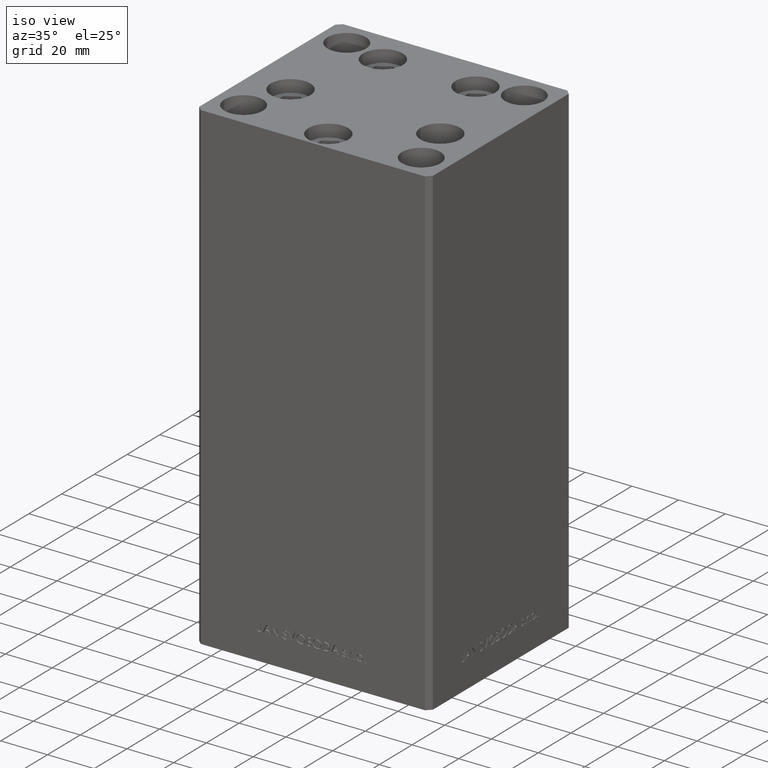
[diagram: clean part render]
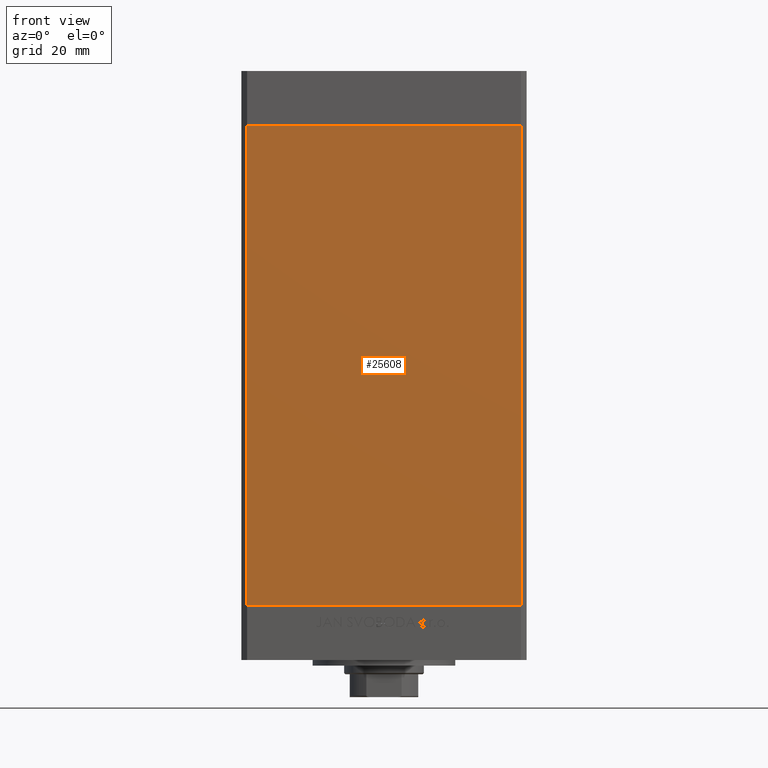
[diagram: tour spotlight — one face highlighted and labeled with its STEP entity id]
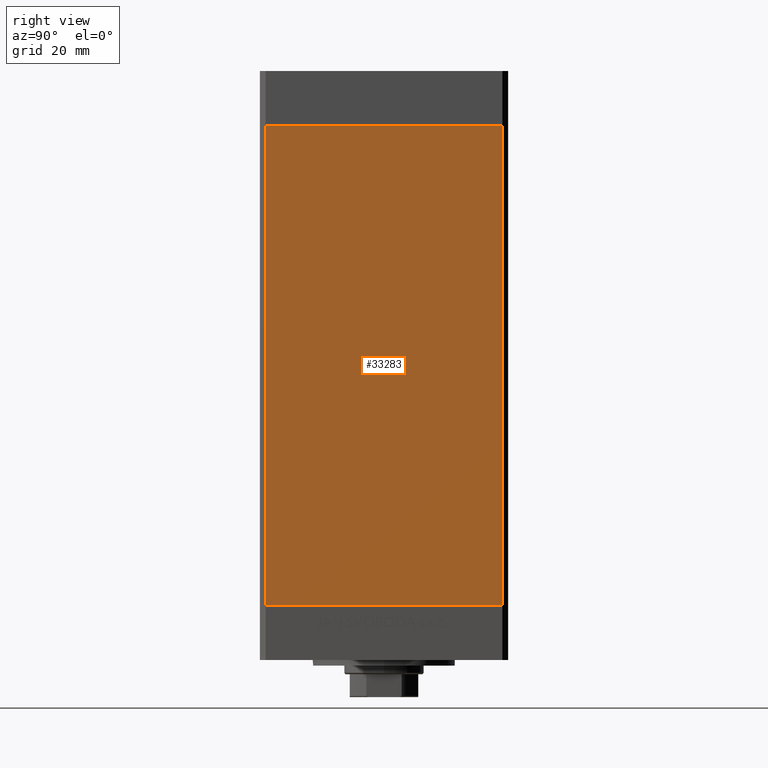
[diagram: tour spotlight — one face highlighted and labeled with its STEP entity id]
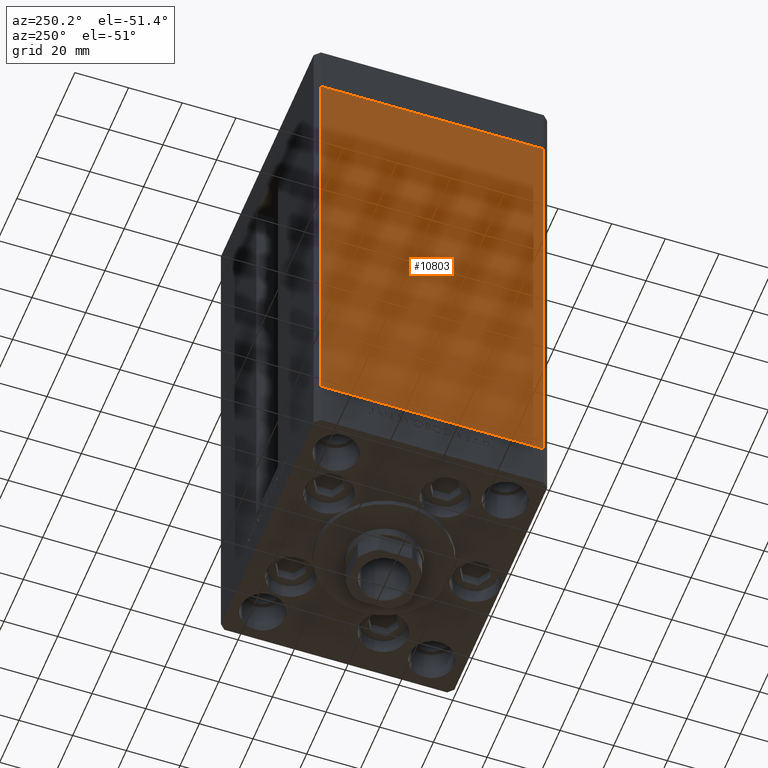
[diagram: tour spotlight — one face highlighted and labeled with its STEP entity id]
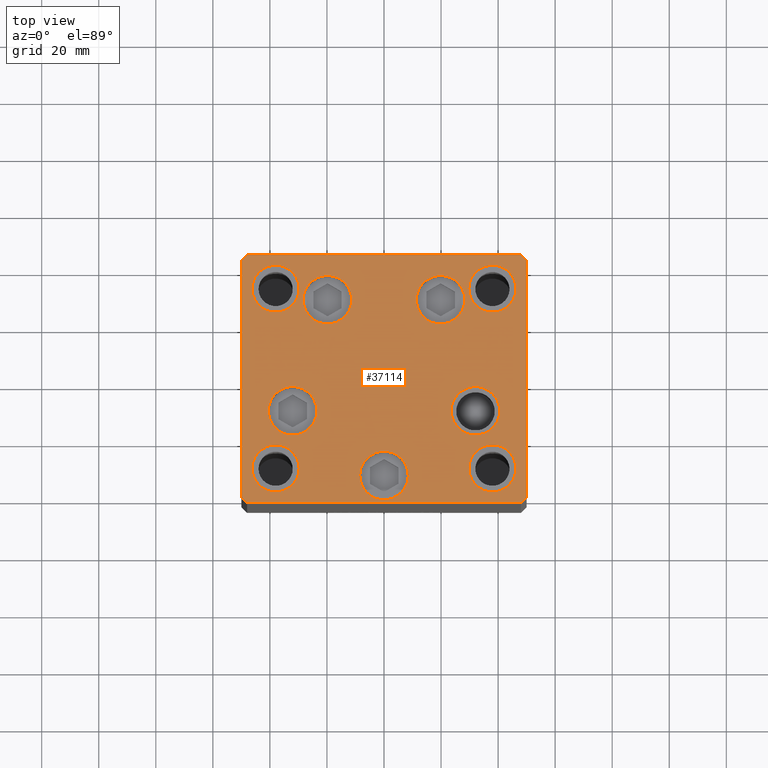
[diagram: tour spotlight — one face highlighted and labeled with its STEP entity id]
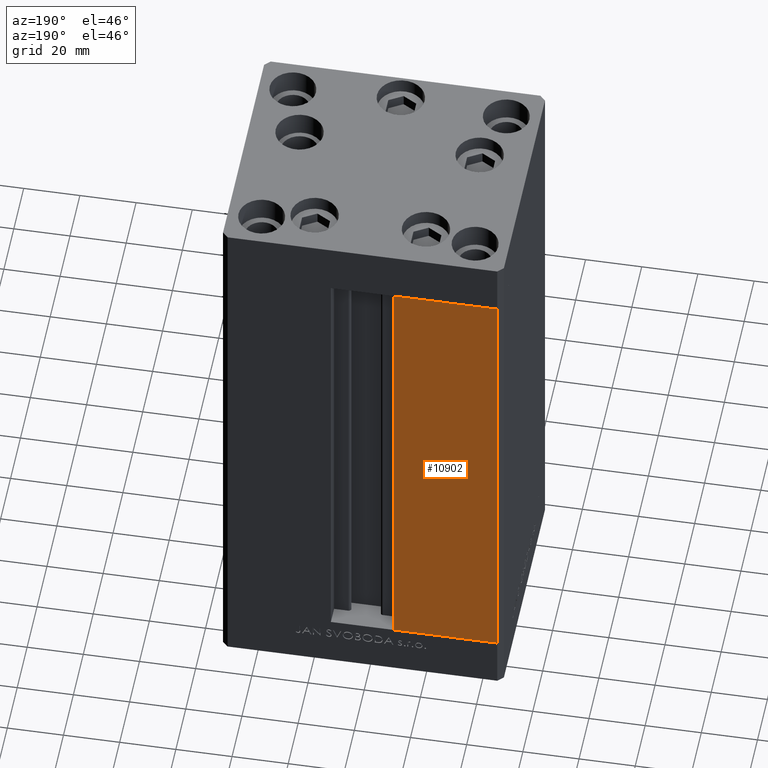
[diagram: tour spotlight — one face highlighted and labeled with its STEP entity id]
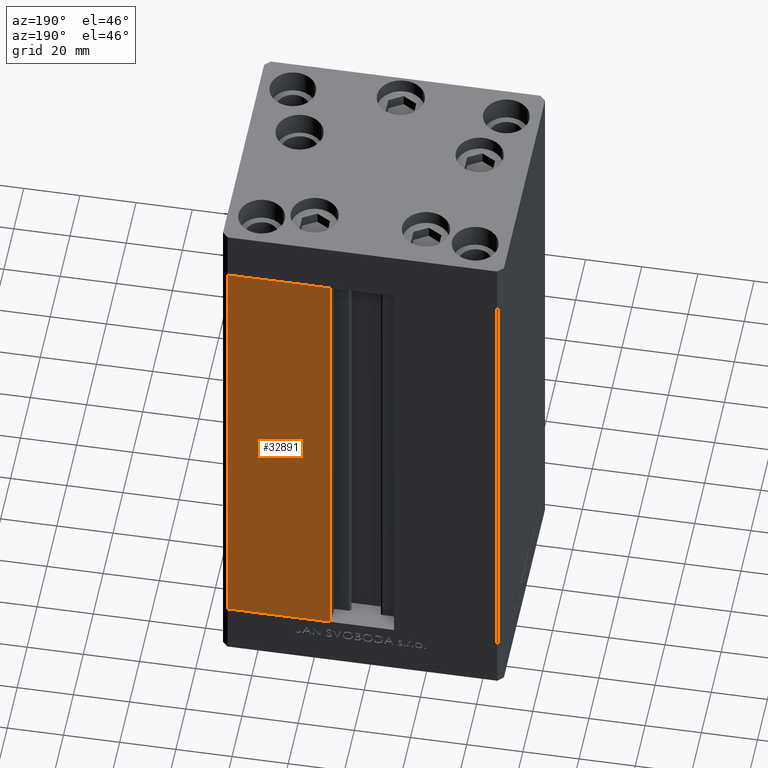
[diagram: tour spotlight — one face highlighted and labeled with its STEP entity id]
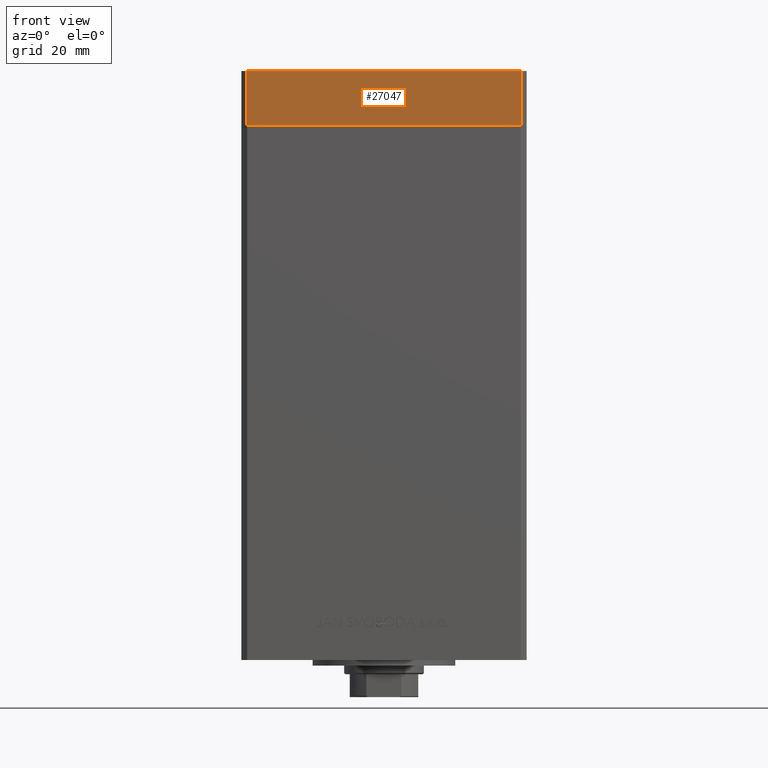
[diagram: tour spotlight — one face highlighted and labeled with its STEP entity id]
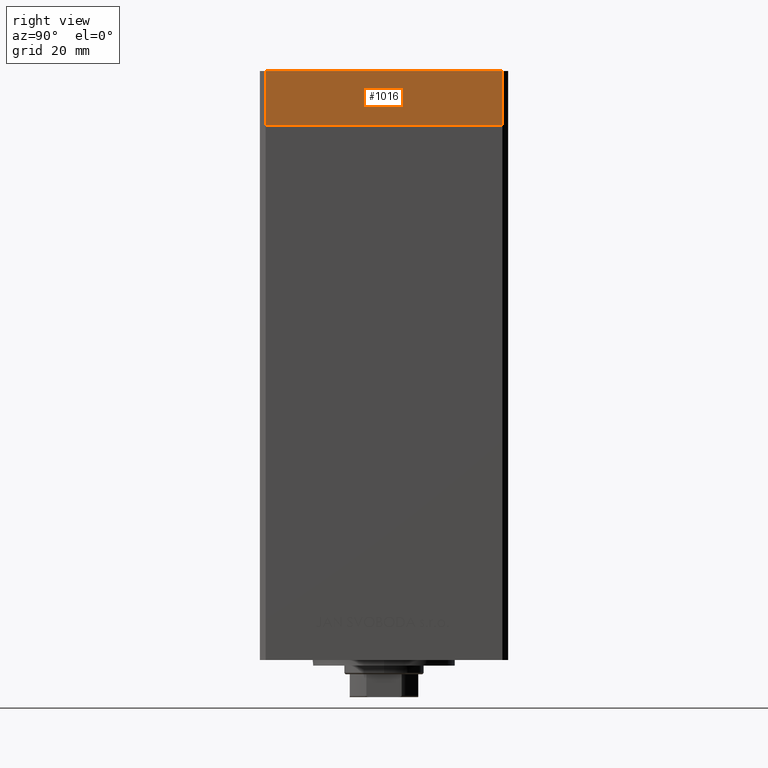
[diagram: tour spotlight — one face highlighted and labeled with its STEP entity id]
A machine part: a face-by-face anatomy tour. The part has 1164 B-rep faces; the first image is the clean iso view, then the 8 largest visible faces are spotlighted one at a time (largest first), each with its STEP entity span.

Face 1 — front view, entity #25608. In plain terms, the highlighted planar face has unit normal (0, 1, 0).
Definition (entity closure, byte-faithful):
#4247 = CARTESIAN_POINT ( 'NONE',  ( -47.99999999999998579, -43.50000000000000000, 168.5000000000000000 ) ) ;
#4658 = CARTESIAN_POINT ( 'NONE',  ( -47.99999999999998579, -43.50000000000000000, 168.5000000000000000 ) ) ;
#5004 = VERTEX_POINT ( 'NONE', #19539 ) ;
#5904 = EDGE_CURVE ( 'NONE', #8054, #5004, #32231, .T. ) ;
#6878 = VECTOR ( 'NONE', #22389, 1000.000000000000000 ) ;
#7977 = LINE ( 'NONE', #4247, #35651 ) ;
#8054 = VERTEX_POINT ( 'NONE', #27189 ) ;
#8873 = DIRECTION ( 'NONE',  ( 1.000000000000000000, 0.000000000000000000, 0.000000000000000000 ) ) ;
#9319 = DIRECTION ( 'NONE',  ( 1.000000000000000000, 0.000000000000000000, 0.000000000000000000 ) ) ;
#9434 = EDGE_CURVE ( 'NONE', #9710, #48022, #42722, .T. ) ;
#9710 = VERTEX_POINT ( 'NONE', #13041 ) ;
#10290 = EDGE_CURVE ( 'NONE', #48022, #5004, #45516, .T. ) ;
#10690 = VECTOR ( 'NONE', #9319, 1000.000000000000000 ) ;
#10791 = VECTOR ( 'NONE', #8873, 1000.000000000000000 ) ;
#12362 = ORIENTED_EDGE ( 'NONE', *, *, #5904, .T. ) ;
#13041 = CARTESIAN_POINT ( 'NONE',  ( -47.99999999999998579, -43.50000000000000000, 168.5000000000000000 ) ) ;
#14065 = DIRECTION ( 'NONE',  ( 0.000000000000000000, -0.000000000000000000, 1.000000000000000000 ) ) ;
#14557 = PLANE ( 'NONE',  #40593 ) ;
#16809 = EDGE_CURVE ( 'NONE', #9710, #8054, #7977, .T. ) ;
#18048 = CARTESIAN_POINT ( 'NONE',  ( -47.99999999999998579, -43.50000000000000000, 168.5000000000000000 ) ) ;
#19539 = CARTESIAN_POINT ( 'NONE',  ( 47.99999999999998579, -43.50000000000000000, 0.000000000000000000 ) ) ;
#20352 = CARTESIAN_POINT ( 'NONE',  ( 47.99999999999998579, -43.50000000000000000, 168.5000000000000000 ) ) ;
#20778 = CARTESIAN_POINT ( 'NONE',  ( -47.99999999999998579, -43.50000000000000000, 0.000000000000000000 ) ) ;
#20834 = DIRECTION ( 'NONE',  ( -0.000000000000000000, -0.000000000000000000, -1.000000000000000000 ) ) ;
#21253 = ORIENTED_EDGE ( 'NONE', *, *, #9434, .F. ) ;
#22389 = DIRECTION ( 'NONE',  ( -0.000000000000000000, -0.000000000000000000, -1.000000000000000000 ) ) ;
#25608 = ADVANCED_FACE ( 'NONE', ( #26259 ), #14557, .F. ) ;
#26259 = FACE_OUTER_BOUND ( 'NONE', #36118, .T. ) ;
#27189 = CARTESIAN_POINT ( 'NONE',  ( -47.99999999999998579, -43.50000000000000000, 0.000000000000000000 ) ) ;
#31094 = ORIENTED_EDGE ( 'NONE', *, *, #10290, .F. ) ;
#32231 = LINE ( 'NONE', #20778, #10690 ) ;
#33228 = DIRECTION ( 'NONE',  ( 0.000000000000000000, 1.000000000000000000, 0.000000000000000000 ) ) ;
#33820 = CARTESIAN_POINT ( 'NONE',  ( 47.99999999999998579, -43.50000000000000000, 168.5000000000000000 ) ) ;
#35651 = VECTOR ( 'NONE', #20834, 1000.000000000000000 ) ;
#36118 = EDGE_LOOP ( 'NONE', ( #12362, #31094, #21253, #43977 ) ) ;
#40593 = AXIS2_PLACEMENT_3D ( 'NONE', #18048, #33228, #14065 ) ;
#42722 = LINE ( 'NONE', #4658, #10791 ) ;
#43977 = ORIENTED_EDGE ( 'NONE', *, *, #16809, .T. ) ;
#45516 = LINE ( 'NONE', #33820, #6878 ) ;
#48022 = VERTEX_POINT ( 'NONE', #20352 ) ;

Face 2 — right view, entity #33283. In plain terms, the highlighted planar face has unit normal (1, -0, 0).
Definition (entity closure, byte-faithful):
#154 = DIRECTION ( 'NONE',  ( -0.000000000000000000, -0.000000000000000000, -1.000000000000000000 ) ) ;
#2975 = VECTOR ( 'NONE', #13537, 1000.000000000000000 ) ;
#3137 = LINE ( 'NONE', #15318, #38033 ) ;
#3876 = EDGE_CURVE ( 'NONE', #42828, #42943, #27144, .T. ) ;
#5575 = CARTESIAN_POINT ( 'NONE',  ( 49.99999999999998579, -41.49999999999999289, 168.5000000000000000 ) ) ;
#7964 = DIRECTION ( 'NONE',  ( -3.344045254895050973E-16, -1.000000000000000000, 0.000000000000000000 ) ) ;
#10497 = CARTESIAN_POINT ( 'NONE',  ( 50.00000000000001421, 41.49999999999999289, 168.5000000000000000 ) ) ;
#13537 = DIRECTION ( 'NONE',  ( -0.000000000000000000, -0.000000000000000000, -1.000000000000000000 ) ) ;
#14985 = EDGE_LOOP ( 'NONE', ( #30369, #34761, #34549, #43398 ) ) ;
#15318 = CARTESIAN_POINT ( 'NONE',  ( 50.00000000000001421, 41.49999999999999289, 168.5000000000000000 ) ) ;
#15332 = CARTESIAN_POINT ( 'NONE',  ( 49.99999999999998579, -41.49999999999999289, 168.5000000000000000 ) ) ;
#16132 = EDGE_CURVE ( 'NONE', #42828, #24350, #3137, .T. ) ;
#16971 = VECTOR ( 'NONE', #7964, 1000.000000000000000 ) ;
#17219 = AXIS2_PLACEMENT_3D ( 'NONE', #33948, #19016, #26741 ) ;
#18412 = CARTESIAN_POINT ( 'NONE',  ( 49.99999999999998579, -41.49999999999999289, 0.000000000000000000 ) ) ;
#19016 = DIRECTION ( 'NONE',  ( 1.000000000000000000, -3.344045254895050973E-16, 0.000000000000000000 ) ) ;
#24350 = VERTEX_POINT ( 'NONE', #38712 ) ;
#26120 = VECTOR ( 'NONE', #27964, 1000.000000000000000 ) ;
#26741 = DIRECTION ( 'NONE',  ( 3.344045254895050973E-16, 1.000000000000000000, 0.000000000000000000 ) ) ;
#26896 = CARTESIAN_POINT ( 'NONE',  ( 50.00000000000001421, 41.49999999999999289, 168.5000000000000000 ) ) ;
#27144 = LINE ( 'NONE', #26896, #16971 ) ;
#27964 = DIRECTION ( 'NONE',  ( -3.344045254895050973E-16, -1.000000000000000000, 0.000000000000000000 ) ) ;
#30369 = ORIENTED_EDGE ( 'NONE', *, *, #39309, .F. ) ;
#33283 = ADVANCED_FACE ( 'NONE', ( #45885 ), #38179, .T. ) ;
#33948 = CARTESIAN_POINT ( 'NONE',  ( 50.00000000000001421, 41.49999999999999289, 168.5000000000000000 ) ) ;
#34549 = ORIENTED_EDGE ( 'NONE', *, *, #3876, .T. ) ;
#34761 = ORIENTED_EDGE ( 'NONE', *, *, #16132, .F. ) ;
#35937 = LINE ( 'NONE', #5575, #2975 ) ;
#36402 = LINE ( 'NONE', #39155, #26120 ) ;
#36469 = EDGE_CURVE ( 'NONE', #42943, #37594, #35937, .T. ) ;
#37594 = VERTEX_POINT ( 'NONE', #18412 ) ;
#38033 = VECTOR ( 'NONE', #154, 1000.000000000000000 ) ;
#38179 = PLANE ( 'NONE',  #17219 ) ;
#38712 = CARTESIAN_POINT ( 'NONE',  ( 50.00000000000001421, 41.49999999999999289, 0.000000000000000000 ) ) ;
#39155 = CARTESIAN_POINT ( 'NONE',  ( 50.00000000000001421, 41.49999999999999289, 0.000000000000000000 ) ) ;
#39309 = EDGE_CURVE ( 'NONE', #24350, #37594, #36402, .T. ) ;
#42828 = VERTEX_POINT ( 'NONE', #10497 ) ;
#42943 = VERTEX_POINT ( 'NONE', #15332 ) ;
#43398 = ORIENTED_EDGE ( 'NONE', *, *, #36469, .T. ) ;
#45885 = FACE_OUTER_BOUND ( 'NONE', #14985, .T. ) ;

Face 3 — auxiliary view, entity #10803. In plain terms, the highlighted planar face has unit normal (1, 0, 0).
Definition (entity closure, byte-faithful):
#3821 = LINE ( 'NONE', #11540, #32649 ) ;
#7407 = EDGE_CURVE ( 'NONE', #24306, #12091, #24886, .T. ) ;
#8111 = CARTESIAN_POINT ( 'NONE',  ( -50.00000000000001421, 41.49999999999999289, 0.000000000000000000 ) ) ;
#9023 = DIRECTION ( 'NONE',  ( 1.000000000000000000, 3.344045254895050973E-16, -0.000000000000000000 ) ) ;
#10133 = VERTEX_POINT ( 'NONE', #20701 ) ;
#10803 = ADVANCED_FACE ( 'NONE', ( #27958 ), #30724, .F. ) ;
#11540 = CARTESIAN_POINT ( 'NONE',  ( -49.99999999999998579, -41.49999999999999289, 168.5000000000000000 ) ) ;
#12091 = VERTEX_POINT ( 'NONE', #37623 ) ;
#13608 = EDGE_CURVE ( 'NONE', #31631, #24306, #20306, .T. ) ;
#14109 = LINE ( 'NONE', #47947, #25388 ) ;
#16502 = DIRECTION ( 'NONE',  ( -3.344045254895050973E-16, 1.000000000000000000, 0.000000000000000000 ) ) ;
#16854 = EDGE_CURVE ( 'NONE', #31631, #10133, #14109, .T. ) ;
#18121 = VECTOR ( 'NONE', #20063, 1000.000000000000000 ) ;
#18600 = EDGE_LOOP ( 'NONE', ( #44710, #19855, #48437, #23153 ) ) ;
#19006 = DIRECTION ( 'NONE',  ( -0.000000000000000000, -0.000000000000000000, -1.000000000000000000 ) ) ;
#19492 = VECTOR ( 'NONE', #39299, 1000.000000000000000 ) ;
#19855 = ORIENTED_EDGE ( 'NONE', *, *, #47556, .F. ) ;
#20063 = DIRECTION ( 'NONE',  ( -0.000000000000000000, -0.000000000000000000, -1.000000000000000000 ) ) ;
#20306 = LINE ( 'NONE', #31771, #18121 ) ;
#20701 = CARTESIAN_POINT ( 'NONE',  ( -49.99999999999998579, -41.49999999999999289, 168.5000000000000000 ) ) ;
#23153 = ORIENTED_EDGE ( 'NONE', *, *, #13608, .T. ) ;
#24306 = VERTEX_POINT ( 'NONE', #8111 ) ;
#24886 = LINE ( 'NONE', #31609, #19492 ) ;
#25388 = VECTOR ( 'NONE', #43974, 1000.000000000000000 ) ;
#27958 = FACE_OUTER_BOUND ( 'NONE', #18600, .T. ) ;
#30724 = PLANE ( 'NONE',  #38672 ) ;
#31609 = CARTESIAN_POINT ( 'NONE',  ( -50.00000000000001421, 41.49999999999999289, 0.000000000000000000 ) ) ;
#31631 = VERTEX_POINT ( 'NONE', #36298 ) ;
#31771 = CARTESIAN_POINT ( 'NONE',  ( -50.00000000000001421, 41.49999999999999289, 168.5000000000000000 ) ) ;
#32649 = VECTOR ( 'NONE', #19006, 1000.000000000000000 ) ;
#36298 = CARTESIAN_POINT ( 'NONE',  ( -50.00000000000001421, 41.49999999999999289, 168.5000000000000000 ) ) ;
#37623 = CARTESIAN_POINT ( 'NONE',  ( -49.99999999999998579, -41.49999999999999289, 0.000000000000000000 ) ) ;
#38672 = AXIS2_PLACEMENT_3D ( 'NONE', #46137, #9023, #16502 ) ;
#39299 = DIRECTION ( 'NONE',  ( 3.344045254895050973E-16, -1.000000000000000000, 0.000000000000000000 ) ) ;
#43974 = DIRECTION ( 'NONE',  ( 3.344045254895050973E-16, -1.000000000000000000, 0.000000000000000000 ) ) ;
#44710 = ORIENTED_EDGE ( 'NONE', *, *, #7407, .T. ) ;
#46137 = CARTESIAN_POINT ( 'NONE',  ( -50.00000000000001421, 41.49999999999999289, 168.5000000000000000 ) ) ;
#47556 = EDGE_CURVE ( 'NONE', #10133, #12091, #3821, .T. ) ;
#47947 = CARTESIAN_POINT ( 'NONE',  ( -50.00000000000001421, 41.49999999999999289, 168.5000000000000000 ) ) ;
#48437 = ORIENTED_EDGE ( 'NONE', *, *, #16854, .F. ) ;

Face 4 — top view, entity #37114. In plain terms, the highlighted planar face has unit normal (0, 0, 1).
Definition (entity closure, byte-faithful):
#218 = FACE_BOUND ( 'NONE', #3412, .T. ) ;
#384 = DIRECTION ( 'NONE',  ( -0.7071067811865474617, 0.7071067811865474617, 0.000000000000000000 ) ) ;
#458 = DIRECTION ( 'NONE',  ( -0.000000000000000000, 0.000000000000000000, 1.000000000000000000 ) ) ;
#604 = AXIS2_PLACEMENT_3D ( 'NONE', #18049, #22029, #18297 ) ;
#867 = VERTEX_POINT ( 'NONE', #41005 ) ;
#1076 = ORIENTED_EDGE ( 'NONE', *, *, #14120, .T. ) ;
#1573 = DIRECTION ( 'NONE',  ( 1.000000000000000000, 0.000000000000000000, 0.000000000000000000 ) ) ;
#1981 = VECTOR ( 'NONE', #384, 1000.000000000000114 ) ;
#2078 = EDGE_CURVE ( 'NONE', #42292, #20664, #13863, .T. ) ;
#2242 = EDGE_CURVE ( 'NONE', #16108, #16893, #46684, .T. ) ;
#2313 = CARTESIAN_POINT ( 'NONE',  ( -32.05550741379015278, -11.33333333333333925, 0.000000000000000000 ) ) ;
#2539 = EDGE_CURVE ( 'NONE', #20664, #42292, #17077, .T. ) ;
#3047 = CIRCLE ( 'NONE', #9390, 8.500000000000000000 ) ;
#3374 = EDGE_CURVE ( 'NONE', #36905, #8572, #22781, .T. ) ;
#3412 = EDGE_LOOP ( 'NONE', ( #48491, #40987 ) ) ;
#3599 = DIRECTION ( 'NONE',  ( 0.000000000000000000, 0.000000000000000000, 1.000000000000000000 ) ) ;
#3812 = CARTESIAN_POINT ( 'NONE',  ( -50.00000000000000000, -41.50000000000000000, 0.000000000000000000 ) ) ;
#3975 = ORIENTED_EDGE ( 'NONE', *, *, #32098, .F. ) ;
#4017 = CARTESIAN_POINT ( 'NONE',  ( -29.75000000000000000, 31.50000000000000000, 0.000000000000000000 ) ) ;
#4266 = CARTESIAN_POINT ( 'NONE',  ( -50.00000000000000711, 41.49999999999995026, 0.000000000000000000 ) ) ;
#4641 = CIRCLE ( 'NONE', #15015, 8.500000000000000000 ) ;
#4906 = FACE_BOUND ( 'NONE', #22301, .T. ) ;
#5006 = DIRECTION ( 'NONE',  ( -0.7071067811865463515, -0.7071067811865487940, 0.000000000000000000 ) ) ;
#5546 = DIRECTION ( 'NONE',  ( 0.000000000000000000, 0.000000000000000000, 1.000000000000000000 ) ) ;
#5678 = ORIENTED_EDGE ( 'NONE', *, *, #48980, .T. ) ;
#5686 = VERTEX_POINT ( 'NONE', #47201 ) ;
#5918 = DIRECTION ( 'NONE',  ( 0.000000000000000000, -0.000000000000000000, -1.000000000000000000 ) ) ;
#5932 = CARTESIAN_POINT ( 'NONE',  ( 23.55550741379015633, -11.33333333333333037, 0.000000000000000000 ) ) ;
#6340 = CARTESIAN_POINT ( 'NONE',  ( 40.55550741379014568, -11.33333333333332860, 0.000000000000000000 ) ) ;
#6728 = VERTEX_POINT ( 'NONE', #10205 ) ;
#7389 = DIRECTION ( 'NONE',  ( 1.000000000000000000, 0.000000000000000000, 0.000000000000000000 ) ) ;
#7423 = DIRECTION ( 'NONE',  ( 0.000000000000000000, -0.000000000000000000, -1.000000000000000000 ) ) ;
#7650 = FACE_OUTER_BOUND ( 'NONE', #36186, .T. ) ;
#7826 = VECTOR ( 'NONE', #33930, 1000.000000000000114 ) ;
#8372 = AXIS2_PLACEMENT_3D ( 'NONE', #19741, #34925, #29977 ) ;
#8418 = EDGE_CURVE ( 'NONE', #16893, #36905, #23397, .T. ) ;
#8572 = VERTEX_POINT ( 'NONE', #25854 ) ;
#8791 = DIRECTION ( 'NONE',  ( 1.000000000000000000, 0.000000000000000000, 0.000000000000000000 ) ) ;
#8819 = AXIS2_PLACEMENT_3D ( 'NONE', #10787, #11770, #19235 ) ;
#9100 = VERTEX_POINT ( 'NONE', #39531 ) ;
#9101 = DIRECTION ( 'NONE',  ( 0.7071067811865463515, 0.7071067811865487940, 0.000000000000000000 ) ) ;
#9127 = ORIENTED_EDGE ( 'NONE', *, *, #8418, .T. ) ;
#9254 = CARTESIAN_POINT ( 'NONE',  ( -37.99999999999999289, -31.50000000000000000, 0.000000000000000000 ) ) ;
#9336 = DIRECTION ( 'NONE',  ( 1.000000000000000000, 0.000000000000000000, 0.000000000000000000 ) ) ;
#9390 = AXIS2_PLACEMENT_3D ( 'NONE', #48024, #11611, #30789 ) ;
#9463 = ORIENTED_EDGE ( 'NONE', *, *, #39633, .T. ) ;
#9695 = VERTEX_POINT ( 'NONE', #27991 ) ;
#9858 = CARTESIAN_POINT ( 'NONE',  ( 4.163799117101000559E-15, -34.00000000000000000, 0.000000000000000000 ) ) ;
#10139 = DIRECTION ( 'NONE',  ( 0.000000000000000000, -0.000000000000000000, -1.000000000000000000 ) ) ;
#10205 = CARTESIAN_POINT ( 'NONE',  ( 8.500000000000003553, -34.00000000000000000, 0.000000000000000000 ) ) ;
#10787 = CARTESIAN_POINT ( 'NONE',  ( 19.82068048781373193, 27.62500000000000000, 0.000000000000000000 ) ) ;
#11153 = CARTESIAN_POINT ( 'NONE',  ( 46.25000000000000000, 31.49999999999999289, 0.000000000000000000 ) ) ;
#11611 = DIRECTION ( 'NONE',  ( 0.000000000000000000, -0.000000000000000000, -1.000000000000000000 ) ) ;
#11770 = DIRECTION ( 'NONE',  ( 0.000000000000000000, -0.000000000000000000, -1.000000000000000000 ) ) ;
#11815 = CARTESIAN_POINT ( 'NONE',  ( -38.00000000000000000, 31.50000000000000000, 0.000000000000000000 ) ) ;
#12308 = ORIENTED_EDGE ( 'NONE', *, *, #17428, .T. ) ;
#12376 = FACE_BOUND ( 'NONE', #34972, .T. ) ;
#12731 = EDGE_LOOP ( 'NONE', ( #30402, #14488 ) ) ;
#12921 = EDGE_CURVE ( 'NONE', #6728, #29401, #22062, .T. ) ;
#13048 = LINE ( 'NONE', #17032, #44480 ) ;
#13112 = EDGE_CURVE ( 'NONE', #867, #45191, #39511, .T. ) ;
#13254 = VERTEX_POINT ( 'NONE', #22700 ) ;
#13383 = DIRECTION ( 'NONE',  ( 1.000000000000000000, 0.000000000000000000, 0.000000000000000000 ) ) ;
#13594 = VECTOR ( 'NONE', #39380, 1000.000000000000000 ) ;
#13645 = VERTEX_POINT ( 'NONE', #25042 ) ;
#13863 = CIRCLE ( 'NONE', #33711, 8.250000000000000000 ) ;
#14006 = VERTEX_POINT ( 'NONE', #48586 ) ;
#14120 = EDGE_CURVE ( 'NONE', #26075, #14006, #37956, .T. ) ;
#14340 = DIRECTION ( 'NONE',  ( 1.000000000000000000, 0.000000000000000000, 0.000000000000000000 ) ) ;
#14488 = ORIENTED_EDGE ( 'NONE', *, *, #39312, .T. ) ;
#14910 = ORIENTED_EDGE ( 'NONE', *, *, #24794, .T. ) ;
#14948 = AXIS2_PLACEMENT_3D ( 'NONE', #26593, #458, #42248 ) ;
#15015 = AXIS2_PLACEMENT_3D ( 'NONE', #2313, #17499, #1573 ) ;
#15543 = CARTESIAN_POINT ( 'NONE',  ( -47.99999999999999289, -43.50000000000001421, 0.000000000000000000 ) ) ;
#16108 = VERTEX_POINT ( 'NONE', #48668 ) ;
#16574 = CIRCLE ( 'NONE', #18949, 8.499999999999992895 ) ;
#16740 = DIRECTION ( 'NONE',  ( 1.000000000000000000, 0.000000000000000000, 0.000000000000000000 ) ) ;
#16893 = VERTEX_POINT ( 'NONE', #30519 ) ;
#16909 = EDGE_CURVE ( 'NONE', #8572, #20605, #31020, .T. ) ;
#17032 = CARTESIAN_POINT ( 'NONE',  ( -47.99999999999999289, -43.50000000000001421, 0.000000000000000000 ) ) ;
#17077 = CIRCLE ( 'NONE', #35336, 8.250000000000000000 ) ;
#17323 = CARTESIAN_POINT ( 'NONE',  ( -50.00000000000000000, -41.50000000000000000, 0.000000000000000000 ) ) ;
#17428 = EDGE_CURVE ( 'NONE', #34368, #13254, #37297, .T. ) ;
#17499 = DIRECTION ( 'NONE',  ( 0.000000000000000000, -0.000000000000000000, -1.000000000000000000 ) ) ;
#17967 = DIRECTION ( 'NONE',  ( 0.000000000000000000, -0.000000000000000000, -1.000000000000000000 ) ) ;
#18049 = CARTESIAN_POINT ( 'NONE',  ( 4.163799117101000559E-15, -34.00000000000000000, 0.000000000000000000 ) ) ;
#18055 = DIRECTION ( 'NONE',  ( 1.000000000000000000, 0.000000000000000000, 0.000000000000000000 ) ) ;
#18115 = AXIS2_PLACEMENT_3D ( 'NONE', #43593, #17967, #21710 ) ;
#18297 = DIRECTION ( 'NONE',  ( 1.000000000000000000, 0.000000000000000000, 0.000000000000000000 ) ) ;
#18715 = CIRCLE ( 'NONE', #8372, 8.250000000000000000 ) ;
#18750 = LINE ( 'NONE', #3812, #7826 ) ;
#18949 = AXIS2_PLACEMENT_3D ( 'NONE', #44230, #10139, #21596 ) ;
#19235 = DIRECTION ( 'NONE',  ( 1.000000000000000000, 0.000000000000000000, 0.000000000000000000 ) ) ;
#19359 = FACE_BOUND ( 'NONE', #40697, .T. ) ;
#19403 = DIRECTION ( 'NONE',  ( -1.003213576468515193E-15, 1.000000000000000000, 0.000000000000000000 ) ) ;
#19500 = EDGE_CURVE ( 'NONE', #31008, #35452, #18750, .T. ) ;
#19741 = CARTESIAN_POINT ( 'NONE',  ( 38.00000000000000000, 31.49999999999999289, 0.000000000000000000 ) ) ;
#20061 = EDGE_CURVE ( 'NONE', #30694, #34981, #16574, .T. ) ;
#20605 = VERTEX_POINT ( 'NONE', #42328 ) ;
#20652 = CIRCLE ( 'NONE', #28620, 8.500000000000000000 ) ;
#20664 = VERTEX_POINT ( 'NONE', #4017 ) ;
#20671 = VERTEX_POINT ( 'NONE', #45820 ) ;
#21122 = ORIENTED_EDGE ( 'NONE', *, *, #2242, .T. ) ;
#21596 = DIRECTION ( 'NONE',  ( 1.000000000000000000, 0.000000000000000000, 0.000000000000000000 ) ) ;
#21710 = DIRECTION ( 'NONE',  ( 1.000000000000000000, 0.000000000000000000, 0.000000000000000000 ) ) ;
#21713 = DIRECTION ( 'NONE',  ( 0.000000000000000000, 0.000000000000000000, 1.000000000000000000 ) ) ;
#21944 = ORIENTED_EDGE ( 'NONE', *, *, #13112, .F. ) ;
#22029 = DIRECTION ( 'NONE',  ( 0.000000000000000000, -0.000000000000000000, -1.000000000000000000 ) ) ;
#22062 = CIRCLE ( 'NONE', #604, 8.500000000000000000 ) ;
#22301 = EDGE_LOOP ( 'NONE', ( #30791, #21944 ) ) ;
#22345 = CIRCLE ( 'NONE', #8819, 8.500000000000000000 ) ;
#22462 = EDGE_LOOP ( 'NONE', ( #25868, #30822 ) ) ;
#22620 = DIRECTION ( 'NONE',  ( 1.000000000000000000, 0.000000000000000000, 0.000000000000000000 ) ) ;
#22700 = CARTESIAN_POINT ( 'NONE',  ( -11.32068048781373726, 27.62499999999999645, 0.000000000000000000 ) ) ;
#22764 = EDGE_CURVE ( 'NONE', #9100, #20671, #20652, .T. ) ;
#22781 = LINE ( 'NONE', #27018, #1981 ) ;
#22796 = DIRECTION ( 'NONE',  ( -1.000000000000000000, -3.614007241618350743E-16, 0.000000000000000000 ) ) ;
#23397 = LINE ( 'NONE', #38318, #25908 ) ;
#23714 = ORIENTED_EDGE ( 'NONE', *, *, #38833, .T. ) ;
#23730 = EDGE_LOOP ( 'NONE', ( #12308, #23714 ) ) ;
#23731 = CARTESIAN_POINT ( 'NONE',  ( -37.99999999999999289, -31.50000000000000000, 0.000000000000000000 ) ) ;
#23879 = EDGE_CURVE ( 'NONE', #34981, #30694, #38173, .T. ) ;
#24213 = DIRECTION ( 'NONE',  ( 0.000000000000000000, 0.000000000000000000, 1.000000000000000000 ) ) ;
#24218 = LINE ( 'NONE', #35409, #13594 ) ;
#24552 = CARTESIAN_POINT ( 'NONE',  ( 47.99999999999999289, -43.50000000000001421, 0.000000000000000000 ) ) ;
#24728 = CARTESIAN_POINT ( 'NONE',  ( -28.32068048781373903, 27.62499999999999645, 0.000000000000000000 ) ) ;
#24794 = EDGE_CURVE ( 'NONE', #33586, #31008, #24218, .T. ) ;
#25042 = CARTESIAN_POINT ( 'NONE',  ( -46.24999999999999289, -31.50000000000000000, 0.000000000000000000 ) ) ;
#25788 = ORIENTED_EDGE ( 'NONE', *, *, #12921, .T. ) ;
#25811 = CARTESIAN_POINT ( 'NONE',  ( -46.25000000000000000, 31.50000000000000000, 0.000000000000000000 ) ) ;
#25854 = CARTESIAN_POINT ( 'NONE',  ( 47.99999999999990763, 43.50000000000000000, 0.000000000000000000 ) ) ;
#25868 = ORIENTED_EDGE ( 'NONE', *, *, #2539, .F. ) ;
#25908 = VECTOR ( 'NONE', #19403, 1000.000000000000000 ) ;
#26075 = VERTEX_POINT ( 'NONE', #27179 ) ;
#26593 = CARTESIAN_POINT ( 'NONE',  ( 0.000000000000000000, 0.000000000000000000, 0.000000000000000000 ) ) ;
#27018 = CARTESIAN_POINT ( 'NONE',  ( 49.99999999999992184, 41.49999999999998579, 0.000000000000000000 ) ) ;
#27090 = FACE_BOUND ( 'NONE', #22462, .T. ) ;
#27179 = CARTESIAN_POINT ( 'NONE',  ( 28.32068048781373193, 27.62500000000000000, 0.000000000000000000 ) ) ;
#27734 = CIRCLE ( 'NONE', #38847, 8.250000000000000000 ) ;
#27741 = ORIENTED_EDGE ( 'NONE', *, *, #23879, .T. ) ;
#27912 = DIRECTION ( 'NONE',  ( 0.000000000000000000, -0.000000000000000000, -1.000000000000000000 ) ) ;
#27991 = CARTESIAN_POINT ( 'NONE',  ( 29.74999999999999645, 31.49999999999999289, 0.000000000000000000 ) ) ;
#28388 = CARTESIAN_POINT ( 'NONE',  ( -48.00000000000000711, 43.49999999999996447, 0.000000000000000000 ) ) ;
#28620 = AXIS2_PLACEMENT_3D ( 'NONE', #36532, #5918, #13383 ) ;
#28766 = DIRECTION ( 'NONE',  ( 0.000000000000000000, 0.000000000000000000, 1.000000000000000000 ) ) ;
#29211 = AXIS2_PLACEMENT_3D ( 'NONE', #46611, #5546, #8791 ) ;
#29286 = CIRCLE ( 'NONE', #30889, 8.250000000000000000 ) ;
#29319 = CIRCLE ( 'NONE', #35649, 8.250000000000000000 ) ;
#29401 = VERTEX_POINT ( 'NONE', #46796 ) ;
#29517 = CARTESIAN_POINT ( 'NONE',  ( 46.25000000000000000, -31.49999999999999289, 0.000000000000000000 ) ) ;
#29760 = DIRECTION ( 'NONE',  ( 0.000000000000000000, 0.000000000000000000, 1.000000000000000000 ) ) ;
#29977 = DIRECTION ( 'NONE',  ( 1.000000000000000000, 0.000000000000000000, 0.000000000000000000 ) ) ;
#29998 = CARTESIAN_POINT ( 'NONE',  ( 38.00000000000000000, -31.49999999999999289, 0.000000000000000000 ) ) ;
#30402 = ORIENTED_EDGE ( 'NONE', *, *, #22764, .T. ) ;
#30519 = CARTESIAN_POINT ( 'NONE',  ( 50.00000000000000000, -41.49999999999999289, 0.000000000000000000 ) ) ;
#30694 = VERTEX_POINT ( 'NONE', #5932 ) ;
#30789 = DIRECTION ( 'NONE',  ( 1.000000000000000000, 0.000000000000000000, 0.000000000000000000 ) ) ;
#30791 = ORIENTED_EDGE ( 'NONE', *, *, #45228, .F. ) ;
#30822 = ORIENTED_EDGE ( 'NONE', *, *, #2078, .F. ) ;
#30889 = AXIS2_PLACEMENT_3D ( 'NONE', #43432, #28766, #9336 ) ;
#31008 = VERTEX_POINT ( 'NONE', #17323 ) ;
#31020 = LINE ( 'NONE', #45931, #46799 ) ;
#31177 = CARTESIAN_POINT ( 'NONE',  ( 19.82068048781373193, 27.62500000000000000, 0.000000000000000000 ) ) ;
#31640 = LINE ( 'NONE', #28388, #48365 ) ;
#31702 = VERTEX_POINT ( 'NONE', #11153 ) ;
#32098 = EDGE_CURVE ( 'NONE', #31702, #9695, #18715, .T. ) ;
#32224 = DIRECTION ( 'NONE',  ( 1.000000000000000000, 0.000000000000000000, 0.000000000000000000 ) ) ;
#33275 = ORIENTED_EDGE ( 'NONE', *, *, #42526, .T. ) ;
#33586 = VERTEX_POINT ( 'NONE', #4266 ) ;
#33711 = AXIS2_PLACEMENT_3D ( 'NONE', #41486, #44985, #7389 ) ;
#33930 = DIRECTION ( 'NONE',  ( 0.7071067811865474617, -0.7071067811865474617, 0.000000000000000000 ) ) ;
#34368 = VERTEX_POINT ( 'NONE', #24728 ) ;
#34925 = DIRECTION ( 'NONE',  ( 0.000000000000000000, 0.000000000000000000, 1.000000000000000000 ) ) ;
#34972 = EDGE_LOOP ( 'NONE', ( #3975, #41414 ) ) ;
#34981 = VERTEX_POINT ( 'NONE', #6340 ) ;
#35263 = FACE_BOUND ( 'NONE', #12731, .T. ) ;
#35336 = AXIS2_PLACEMENT_3D ( 'NONE', #11815, #3599, #42404 ) ;
#35409 = CARTESIAN_POINT ( 'NONE',  ( -50.00000000000000711, 41.49999999999995026, 0.000000000000000000 ) ) ;
#35452 = VERTEX_POINT ( 'NONE', #15543 ) ;
#35626 = EDGE_LOOP ( 'NONE', ( #5678, #1076 ) ) ;
#35649 = AXIS2_PLACEMENT_3D ( 'NONE', #23731, #24213, #45871 ) ;
#36186 = EDGE_LOOP ( 'NONE', ( #42252, #33275, #21122, #9127, #38665, #44301, #9463, #14910 ) ) ;
#36532 = CARTESIAN_POINT ( 'NONE',  ( -32.05550741379015278, -11.33333333333333925, 0.000000000000000000 ) ) ;
#36905 = VERTEX_POINT ( 'NONE', #45056 ) ;
#37114 = ADVANCED_FACE ( 'NONE', ( #41746, #45984, #19359, #42726, #35263, #4906, #218, #27090, #12376, #7650 ), #38514, .T. ) ;
#37181 = AXIS2_PLACEMENT_3D ( 'NONE', #31177, #27912, #38615 ) ;
#37297 = CIRCLE ( 'NONE', #18115, 8.500000000000000000 ) ;
#37956 = CIRCLE ( 'NONE', #37181, 8.500000000000000000 ) ;
#38173 = CIRCLE ( 'NONE', #41357, 8.499999999999992895 ) ;
#38318 = CARTESIAN_POINT ( 'NONE',  ( 50.00000000000000000, -41.49999999999999289, 0.000000000000000000 ) ) ;
#38507 = VECTOR ( 'NONE', #9101, 1000.000000000000000 ) ;
#38514 = PLANE ( 'NONE',  #14948 ) ;
#38615 = DIRECTION ( 'NONE',  ( 1.000000000000000000, 0.000000000000000000, 0.000000000000000000 ) ) ;
#38665 = ORIENTED_EDGE ( 'NONE', *, *, #3374, .T. ) ;
#38833 = EDGE_CURVE ( 'NONE', #13254, #34368, #3047, .T. ) ;
#38847 = AXIS2_PLACEMENT_3D ( 'NONE', #29998, #29760, #18055 ) ;
#39003 = EDGE_CURVE ( 'NONE', #9695, #31702, #29286, .T. ) ;
#39312 = EDGE_CURVE ( 'NONE', #20671, #9100, #4641, .T. ) ;
#39380 = DIRECTION ( 'NONE',  ( 8.360113137237628665E-17, -1.000000000000000000, 0.000000000000000000 ) ) ;
#39511 = CIRCLE ( 'NONE', #29211, 8.250000000000000000 ) ;
#39531 = CARTESIAN_POINT ( 'NONE',  ( -40.55550741379015278, -11.33333333333333925, 0.000000000000000000 ) ) ;
#39633 = EDGE_CURVE ( 'NONE', #20605, #33586, #31640, .T. ) ;
#40493 = AXIS2_PLACEMENT_3D ( 'NONE', #9858, #48415, #14340 ) ;
#40697 = EDGE_LOOP ( 'NONE', ( #44248, #27741 ) ) ;
#40736 = EDGE_CURVE ( 'NONE', #29401, #6728, #42856, .T. ) ;
#40987 = ORIENTED_EDGE ( 'NONE', *, *, #43475, .F. ) ;
#41005 = CARTESIAN_POINT ( 'NONE',  ( 29.74999999999999645, -31.49999999999999289, 0.000000000000000000 ) ) ;
#41357 = AXIS2_PLACEMENT_3D ( 'NONE', #48977, #7423, #22620 ) ;
#41414 = ORIENTED_EDGE ( 'NONE', *, *, #39003, .F. ) ;
#41486 = CARTESIAN_POINT ( 'NONE',  ( -38.00000000000000000, 31.50000000000000000, 0.000000000000000000 ) ) ;
#41746 = FACE_BOUND ( 'NONE', #23730, .T. ) ;
#42001 = CIRCLE ( 'NONE', #43597, 8.250000000000000000 ) ;
#42248 = DIRECTION ( 'NONE',  ( 1.000000000000000000, 0.000000000000000000, 0.000000000000000000 ) ) ;
#42252 = ORIENTED_EDGE ( 'NONE', *, *, #19500, .T. ) ;
#42292 = VERTEX_POINT ( 'NONE', #25811 ) ;
#42328 = CARTESIAN_POINT ( 'NONE',  ( -48.00000000000000711, 43.49999999999996447, 0.000000000000000000 ) ) ;
#42404 = DIRECTION ( 'NONE',  ( 1.000000000000000000, 0.000000000000000000, 0.000000000000000000 ) ) ;
#42526 = EDGE_CURVE ( 'NONE', #35452, #16108, #13048, .T. ) ;
#42726 = FACE_BOUND ( 'NONE', #45971, .T. ) ;
#42856 = CIRCLE ( 'NONE', #40493, 8.500000000000000000 ) ;
#43317 = EDGE_CURVE ( 'NONE', #5686, #13645, #29319, .T. ) ;
#43432 = CARTESIAN_POINT ( 'NONE',  ( 38.00000000000000000, 31.49999999999999289, 0.000000000000000000 ) ) ;
#43475 = EDGE_CURVE ( 'NONE', #13645, #5686, #42001, .T. ) ;
#43593 = CARTESIAN_POINT ( 'NONE',  ( -19.82068048781373903, 27.62499999999999645, 0.000000000000000000 ) ) ;
#43597 = AXIS2_PLACEMENT_3D ( 'NONE', #9254, #21713, #16740 ) ;
#44230 = CARTESIAN_POINT ( 'NONE',  ( 32.05550741379015278, -11.33333333333333037, 0.000000000000000000 ) ) ;
#44248 = ORIENTED_EDGE ( 'NONE', *, *, #20061, .T. ) ;
#44301 = ORIENTED_EDGE ( 'NONE', *, *, #16909, .T. ) ;
#44480 = VECTOR ( 'NONE', #32224, 1000.000000000000000 ) ;
#44985 = DIRECTION ( 'NONE',  ( 0.000000000000000000, 0.000000000000000000, 1.000000000000000000 ) ) ;
#45056 = CARTESIAN_POINT ( 'NONE',  ( 49.99999999999992184, 41.49999999999998579, 0.000000000000000000 ) ) ;
#45191 = VERTEX_POINT ( 'NONE', #29517 ) ;
#45228 = EDGE_CURVE ( 'NONE', #45191, #867, #27734, .T. ) ;
#45775 = ORIENTED_EDGE ( 'NONE', *, *, #40736, .T. ) ;
#45820 = CARTESIAN_POINT ( 'NONE',  ( -23.55550741379015278, -11.33333333333333748, 0.000000000000000000 ) ) ;
#45871 = DIRECTION ( 'NONE',  ( 1.000000000000000000, 0.000000000000000000, 0.000000000000000000 ) ) ;
#45931 = CARTESIAN_POINT ( 'NONE',  ( 47.99999999999990763, 43.50000000000000000, 0.000000000000000000 ) ) ;
#45971 = EDGE_LOOP ( 'NONE', ( #45775, #25788 ) ) ;
#45984 = FACE_BOUND ( 'NONE', #35626, .T. ) ;
#46611 = CARTESIAN_POINT ( 'NONE',  ( 38.00000000000000000, -31.49999999999999289, 0.000000000000000000 ) ) ;
#46684 = LINE ( 'NONE', #24552, #38507 ) ;
#46796 = CARTESIAN_POINT ( 'NONE',  ( -8.499999999999996447, -34.00000000000000000, 0.000000000000000000 ) ) ;
#46799 = VECTOR ( 'NONE', #22796, 1000.000000000000000 ) ;
#47201 = CARTESIAN_POINT ( 'NONE',  ( -29.74999999999999289, -31.50000000000000000, 0.000000000000000000 ) ) ;
#48024 = CARTESIAN_POINT ( 'NONE',  ( -19.82068048781373903, 27.62499999999999645, 0.000000000000000000 ) ) ;
#48365 = VECTOR ( 'NONE', #5006, 1000.000000000000000 ) ;
#48415 = DIRECTION ( 'NONE',  ( 0.000000000000000000, -0.000000000000000000, -1.000000000000000000 ) ) ;
#48491 = ORIENTED_EDGE ( 'NONE', *, *, #43317, .F. ) ;
#48586 = CARTESIAN_POINT ( 'NONE',  ( 11.32068048781373015, 27.62500000000000000, 0.000000000000000000 ) ) ;
#48668 = CARTESIAN_POINT ( 'NONE',  ( 47.99999999999999289, -43.50000000000001421, 0.000000000000000000 ) ) ;
#48977 = CARTESIAN_POINT ( 'NONE',  ( 32.05550741379015278, -11.33333333333333037, 0.000000000000000000 ) ) ;
#48980 = EDGE_CURVE ( 'NONE', #14006, #26075, #22345, .T. ) ;

Face 5 — auxiliary view, entity #10902. In plain terms, the highlighted planar face has unit normal (0, -1, 0).
Definition (entity closure, byte-faithful):
#1765 = CARTESIAN_POINT ( 'NONE',  ( -11.24999999999999822, 43.50000000000000000, 168.5000000000000000 ) ) ;
#3889 = ORIENTED_EDGE ( 'NONE', *, *, #33624, .T. ) ;
#4756 = DIRECTION ( 'NONE',  ( 1.000000000000000000, 0.000000000000000000, 0.000000000000000000 ) ) ;
#6533 = CARTESIAN_POINT ( 'NONE',  ( -11.24999999999999822, 43.50000000000000000, 168.5000000000000000 ) ) ;
#8253 = ORIENTED_EDGE ( 'NONE', *, *, #15182, .T. ) ;
#8441 = LINE ( 'NONE', #42533, #35616 ) ;
#8626 = VERTEX_POINT ( 'NONE', #19584 ) ;
#10902 = ADVANCED_FACE ( 'NONE', ( #47837 ), #24468, .F. ) ;
#11031 = VECTOR ( 'NONE', #43520, 1000.000000000000000 ) ;
#11316 = EDGE_LOOP ( 'NONE', ( #3889, #26451, #8253, #39182 ) ) ;
#13006 = DIRECTION ( 'NONE',  ( 0.000000000000000000, -0.000000000000000000, -1.000000000000000000 ) ) ;
#13229 = VECTOR ( 'NONE', #4756, 1000.000000000000000 ) ;
#14429 = CARTESIAN_POINT ( 'NONE',  ( -11.24999999999999822, 43.50000000000000000, 0.000000000000000000 ) ) ;
#15182 = EDGE_CURVE ( 'NONE', #27131, #36002, #8441, .T. ) ;
#15688 = EDGE_CURVE ( 'NONE', #8626, #36002, #32094, .T. ) ;
#17218 = AXIS2_PLACEMENT_3D ( 'NONE', #6533, #25473, #13006 ) ;
#19584 = CARTESIAN_POINT ( 'NONE',  ( -48.00000000000000711, 43.50000000000000000, 168.5000000000000000 ) ) ;
#20687 = CARTESIAN_POINT ( 'NONE',  ( -48.00000000000000711, 43.50000000000000000, 0.000000000000000000 ) ) ;
#20949 = EDGE_CURVE ( 'NONE', #27131, #35992, #40552, .T. ) ;
#23932 = LINE ( 'NONE', #1765, #13229 ) ;
#24468 = PLANE ( 'NONE',  #17218 ) ;
#25473 = DIRECTION ( 'NONE',  ( 0.000000000000000000, -1.000000000000000000, 0.000000000000000000 ) ) ;
#26451 = ORIENTED_EDGE ( 'NONE', *, *, #20949, .F. ) ;
#27131 = VERTEX_POINT ( 'NONE', #47175 ) ;
#27732 = VECTOR ( 'NONE', #36576, 1000.000000000000000 ) ;
#32094 = LINE ( 'NONE', #47250, #11031 ) ;
#33624 = EDGE_CURVE ( 'NONE', #8626, #35992, #23932, .T. ) ;
#35317 = DIRECTION ( 'NONE',  ( -1.000000000000000000, 0.000000000000000000, 0.000000000000000000 ) ) ;
#35616 = VECTOR ( 'NONE', #35317, 1000.000000000000000 ) ;
#35992 = VERTEX_POINT ( 'NONE', #47064 ) ;
#36002 = VERTEX_POINT ( 'NONE', #20687 ) ;
#36576 = DIRECTION ( 'NONE',  ( -0.000000000000000000, -0.000000000000000000, 1.000000000000000000 ) ) ;
#39182 = ORIENTED_EDGE ( 'NONE', *, *, #15688, .F. ) ;
#40552 = LINE ( 'NONE', #14429, #27732 ) ;
#42533 = CARTESIAN_POINT ( 'NONE',  ( -11.24999999999999822, 43.50000000000000000, 0.000000000000000000 ) ) ;
#43520 = DIRECTION ( 'NONE',  ( -0.000000000000000000, -0.000000000000000000, -1.000000000000000000 ) ) ;
#47064 = CARTESIAN_POINT ( 'NONE',  ( -11.24999999999999822, 43.50000000000000000, 168.5000000000000000 ) ) ;
#47175 = CARTESIAN_POINT ( 'NONE',  ( -11.24999999999999822, 43.50000000000000000, 0.000000000000000000 ) ) ;
#47250 = CARTESIAN_POINT ( 'NONE',  ( -48.00000000000000711, 43.50000000000000000, 168.5000000000000000 ) ) ;
#47837 = FACE_OUTER_BOUND ( 'NONE', #11316, .T. ) ;

Face 6 — auxiliary view, entity #32891. In plain terms, the highlighted planar face has unit normal (0, -1, 0).
Definition (entity closure, byte-faithful):
#393 = DIRECTION ( 'NONE',  ( -1.000000000000000000, 0.000000000000000000, 0.000000000000000000 ) ) ;
#1145 = PLANE ( 'NONE',  #35443 ) ;
#3026 = CARTESIAN_POINT ( 'NONE',  ( 48.00000000000000711, 43.50000000000000000, 168.5000000000000000 ) ) ;
#3654 = DIRECTION ( 'NONE',  ( 1.000000000000000000, 0.000000000000000000, 0.000000000000000000 ) ) ;
#4157 = LINE ( 'NONE', #30313, #46588 ) ;
#6537 = CARTESIAN_POINT ( 'NONE',  ( 11.24999999999999822, 43.50000000000000000, 0.000000000000000000 ) ) ;
#7614 = LINE ( 'NONE', #41470, #33358 ) ;
#9376 = ORIENTED_EDGE ( 'NONE', *, *, #16081, .T. ) ;
#12105 = DIRECTION ( 'NONE',  ( 0.000000000000000000, -1.000000000000000000, 0.000000000000000000 ) ) ;
#15582 = CARTESIAN_POINT ( 'NONE',  ( -11.24999999999999822, 43.50000000000000000, 168.5000000000000000 ) ) ;
#16081 = EDGE_CURVE ( 'NONE', #28681, #47165, #22789, .T. ) ;
#20042 = CARTESIAN_POINT ( 'NONE',  ( 11.24999999999999822, 43.50000000000000000, 0.000000000000000000 ) ) ;
#21498 = VERTEX_POINT ( 'NONE', #3026 ) ;
#21632 = ORIENTED_EDGE ( 'NONE', *, *, #22208, .T. ) ;
#22208 = EDGE_CURVE ( 'NONE', #21498, #28681, #7614, .T. ) ;
#22247 = CARTESIAN_POINT ( 'NONE',  ( 11.24999999999999112, 43.50000000000000000, 168.5000000000000000 ) ) ;
#22789 = LINE ( 'NONE', #26529, #27697 ) ;
#22813 = DIRECTION ( 'NONE',  ( -0.000000000000000000, -0.000000000000000000, -1.000000000000000000 ) ) ;
#26529 = CARTESIAN_POINT ( 'NONE',  ( -11.24999999999999822, 43.50000000000000000, 0.000000000000000000 ) ) ;
#27697 = VECTOR ( 'NONE', #393, 1000.000000000000000 ) ;
#28681 = VERTEX_POINT ( 'NONE', #41560 ) ;
#30313 = CARTESIAN_POINT ( 'NONE',  ( -11.24999999999999822, 43.50000000000000000, 168.5000000000000000 ) ) ;
#30784 = DIRECTION ( 'NONE',  ( 0.000000000000000000, -0.000000000000000000, -1.000000000000000000 ) ) ;
#32891 = ADVANCED_FACE ( 'NONE', ( #46197 ), #1145, .F. ) ;
#33355 = EDGE_LOOP ( 'NONE', ( #9376, #48470, #49119, #21632 ) ) ;
#33358 = VECTOR ( 'NONE', #22813, 1000.000000000000000 ) ;
#33449 = EDGE_CURVE ( 'NONE', #47165, #37386, #48083, .T. ) ;
#34157 = EDGE_CURVE ( 'NONE', #37386, #21498, #4157, .T. ) ;
#35443 = AXIS2_PLACEMENT_3D ( 'NONE', #15582, #12105, #30784 ) ;
#36655 = DIRECTION ( 'NONE',  ( -0.000000000000000000, -0.000000000000000000, 1.000000000000000000 ) ) ;
#37386 = VERTEX_POINT ( 'NONE', #22247 ) ;
#41470 = CARTESIAN_POINT ( 'NONE',  ( 48.00000000000000711, 43.50000000000000000, 168.5000000000000000 ) ) ;
#41560 = CARTESIAN_POINT ( 'NONE',  ( 48.00000000000000711, 43.50000000000000000, 0.000000000000000000 ) ) ;
#46197 = FACE_OUTER_BOUND ( 'NONE', #33355, .T. ) ;
#46588 = VECTOR ( 'NONE', #3654, 1000.000000000000000 ) ;
#47165 = VERTEX_POINT ( 'NONE', #20042 ) ;
#48083 = LINE ( 'NONE', #6537, #48197 ) ;
#48197 = VECTOR ( 'NONE', #36655, 1000.000000000000000 ) ;
#48470 = ORIENTED_EDGE ( 'NONE', *, *, #33449, .T. ) ;
#49119 = ORIENTED_EDGE ( 'NONE', *, *, #34157, .T. ) ;

Face 7 — front view, entity #27047. In plain terms, the highlighted planar face has unit normal (0, -1, 0).
Definition (entity closure, byte-faithful):
#711 = CARTESIAN_POINT ( 'NONE',  ( 47.99999999999999289, -43.50000000000001421, -19.00000000000000000 ) ) ;
#2005 = EDGE_CURVE ( 'NONE', #16373, #5579, #25615, .T. ) ;
#2934 = CARTESIAN_POINT ( 'NONE',  ( -47.99999999999999289, -43.50000000000001421, -19.00000000000000000 ) ) ;
#3416 = DIRECTION ( 'NONE',  ( 1.000000000000000000, 0.000000000000000000, 0.000000000000000000 ) ) ;
#5272 = CARTESIAN_POINT ( 'NONE',  ( -47.99999999999999289, -43.50000000000001421, -19.00000000000000000 ) ) ;
#5579 = VERTEX_POINT ( 'NONE', #711 ) ;
#11071 = DIRECTION ( 'NONE',  ( 0.000000000000000000, 0.000000000000000000, 1.000000000000000000 ) ) ;
#13048 = LINE ( 'NONE', #17032, #44480 ) ;
#14417 = LINE ( 'NONE', #22126, #46391 ) ;
#14933 = CARTESIAN_POINT ( 'NONE',  ( -47.99999999999999289, -43.50000000000001421, -19.00000000000000000 ) ) ;
#15191 = VECTOR ( 'NONE', #11071, 1000.000000000000000 ) ;
#15295 = LINE ( 'NONE', #30737, #15191 ) ;
#15459 = ORIENTED_EDGE ( 'NONE', *, *, #29014, .F. ) ;
#15543 = CARTESIAN_POINT ( 'NONE',  ( -47.99999999999999289, -43.50000000000001421, 0.000000000000000000 ) ) ;
#16108 = VERTEX_POINT ( 'NONE', #48668 ) ;
#16373 = VERTEX_POINT ( 'NONE', #5272 ) ;
#17032 = CARTESIAN_POINT ( 'NONE',  ( -47.99999999999999289, -43.50000000000001421, 0.000000000000000000 ) ) ;
#17253 = ORIENTED_EDGE ( 'NONE', *, *, #42526, .F. ) ;
#18431 = AXIS2_PLACEMENT_3D ( 'NONE', #14933, #18434, #45293 ) ;
#18434 = DIRECTION ( 'NONE',  ( 0.000000000000000000, -1.000000000000000000, 0.000000000000000000 ) ) ;
#18907 = FACE_OUTER_BOUND ( 'NONE', #26270, .T. ) ;
#22126 = CARTESIAN_POINT ( 'NONE',  ( -47.99999999999999289, -43.50000000000001421, -19.00000000000000000 ) ) ;
#25615 = LINE ( 'NONE', #2934, #32944 ) ;
#26270 = EDGE_LOOP ( 'NONE', ( #17253, #15459, #29515, #37267 ) ) ;
#26480 = EDGE_CURVE ( 'NONE', #5579, #16108, #15295, .T. ) ;
#27047 = ADVANCED_FACE ( 'NONE', ( #18907 ), #49008, .T. ) ;
#29014 = EDGE_CURVE ( 'NONE', #16373, #35452, #14417, .T. ) ;
#29515 = ORIENTED_EDGE ( 'NONE', *, *, #2005, .T. ) ;
#30737 = CARTESIAN_POINT ( 'NONE',  ( 47.99999999999999289, -43.50000000000001421, -19.00000000000000000 ) ) ;
#32224 = DIRECTION ( 'NONE',  ( 1.000000000000000000, 0.000000000000000000, 0.000000000000000000 ) ) ;
#32944 = VECTOR ( 'NONE', #3416, 1000.000000000000000 ) ;
#33805 = DIRECTION ( 'NONE',  ( 0.000000000000000000, 0.000000000000000000, 1.000000000000000000 ) ) ;
#35452 = VERTEX_POINT ( 'NONE', #15543 ) ;
#37267 = ORIENTED_EDGE ( 'NONE', *, *, #26480, .T. ) ;
#42526 = EDGE_CURVE ( 'NONE', #35452, #16108, #13048, .T. ) ;
#44480 = VECTOR ( 'NONE', #32224, 1000.000000000000000 ) ;
#45293 = DIRECTION ( 'NONE',  ( 0.000000000000000000, -0.000000000000000000, -1.000000000000000000 ) ) ;
#46391 = VECTOR ( 'NONE', #33805, 1000.000000000000000 ) ;
#48668 = CARTESIAN_POINT ( 'NONE',  ( 47.99999999999999289, -43.50000000000001421, 0.000000000000000000 ) ) ;
#49008 = PLANE ( 'NONE',  #18431 ) ;

Face 8 — right view, entity #1016. In plain terms, the highlighted planar face has unit normal (1, 0, 0).
Definition (entity closure, byte-faithful):
#28 = AXIS2_PLACEMENT_3D ( 'NONE', #27254, #38681, #46396 ) ;
#362 = EDGE_CURVE ( 'NONE', #14783, #1805, #15729, .T. ) ;
#1016 = ADVANCED_FACE ( 'NONE', ( #16528 ), #9050, .T. ) ;
#1214 = CARTESIAN_POINT ( 'NONE',  ( 49.99999999999992184, 41.49999999999998579, -19.00000000000000000 ) ) ;
#1805 = VERTEX_POINT ( 'NONE', #1214 ) ;
#2420 = DIRECTION ( 'NONE',  ( 0.000000000000000000, 0.000000000000000000, 1.000000000000000000 ) ) ;
#5896 = CARTESIAN_POINT ( 'NONE',  ( 50.00000000000000000, -41.49999999999999289, -19.00000000000000000 ) ) ;
#7727 = LINE ( 'NONE', #27391, #12629 ) ;
#8418 = EDGE_CURVE ( 'NONE', #16893, #36905, #23397, .T. ) ;
#9050 = PLANE ( 'NONE',  #28 ) ;
#12629 = VECTOR ( 'NONE', #42070, 1000.000000000000000 ) ;
#14783 = VERTEX_POINT ( 'NONE', #18730 ) ;
#15479 = DIRECTION ( 'NONE',  ( -1.003213576468515193E-15, 1.000000000000000000, 0.000000000000000000 ) ) ;
#15729 = LINE ( 'NONE', #34399, #48501 ) ;
#16528 = FACE_OUTER_BOUND ( 'NONE', #38587, .T. ) ;
#16893 = VERTEX_POINT ( 'NONE', #30519 ) ;
#17498 = EDGE_CURVE ( 'NONE', #1805, #36905, #7727, .T. ) ;
#18105 = ORIENTED_EDGE ( 'NONE', *, *, #17498, .T. ) ;
#18730 = CARTESIAN_POINT ( 'NONE',  ( 50.00000000000000000, -41.49999999999999289, -19.00000000000000000 ) ) ;
#19107 = EDGE_CURVE ( 'NONE', #14783, #16893, #43724, .T. ) ;
#19403 = DIRECTION ( 'NONE',  ( -1.003213576468515193E-15, 1.000000000000000000, 0.000000000000000000 ) ) ;
#23397 = LINE ( 'NONE', #38318, #25908 ) ;
#24410 = ORIENTED_EDGE ( 'NONE', *, *, #362, .T. ) ;
#25908 = VECTOR ( 'NONE', #19403, 1000.000000000000000 ) ;
#27254 = CARTESIAN_POINT ( 'NONE',  ( 50.00000000000000000, -41.49999999999999289, -19.00000000000000000 ) ) ;
#27391 = CARTESIAN_POINT ( 'NONE',  ( 49.99999999999992184, 41.49999999999998579, -19.00000000000000000 ) ) ;
#30519 = CARTESIAN_POINT ( 'NONE',  ( 50.00000000000000000, -41.49999999999999289, 0.000000000000000000 ) ) ;
#31532 = ORIENTED_EDGE ( 'NONE', *, *, #8418, .F. ) ;
#33350 = ORIENTED_EDGE ( 'NONE', *, *, #19107, .F. ) ;
#34399 = CARTESIAN_POINT ( 'NONE',  ( 50.00000000000000000, -41.49999999999999289, -19.00000000000000000 ) ) ;
#34867 = VECTOR ( 'NONE', #2420, 1000.000000000000000 ) ;
#36905 = VERTEX_POINT ( 'NONE', #45056 ) ;
#38318 = CARTESIAN_POINT ( 'NONE',  ( 50.00000000000000000, -41.49999999999999289, 0.000000000000000000 ) ) ;
#38587 = EDGE_LOOP ( 'NONE', ( #31532, #33350, #24410, #18105 ) ) ;
#38681 = DIRECTION ( 'NONE',  ( 1.000000000000000000, 1.003213576468515193E-15, -0.000000000000000000 ) ) ;
#42070 = DIRECTION ( 'NONE',  ( 0.000000000000000000, 0.000000000000000000, 1.000000000000000000 ) ) ;
#43724 = LINE ( 'NONE', #5896, #34867 ) ;
#45056 = CARTESIAN_POINT ( 'NONE',  ( 49.99999999999992184, 41.49999999999998579, 0.000000000000000000 ) ) ;
#46396 = DIRECTION ( 'NONE',  ( -1.003213576468515193E-15, 1.000000000000000000, 0.000000000000000000 ) ) ;
#48501 = VECTOR ( 'NONE', #15479, 1000.000000000000000 ) ;